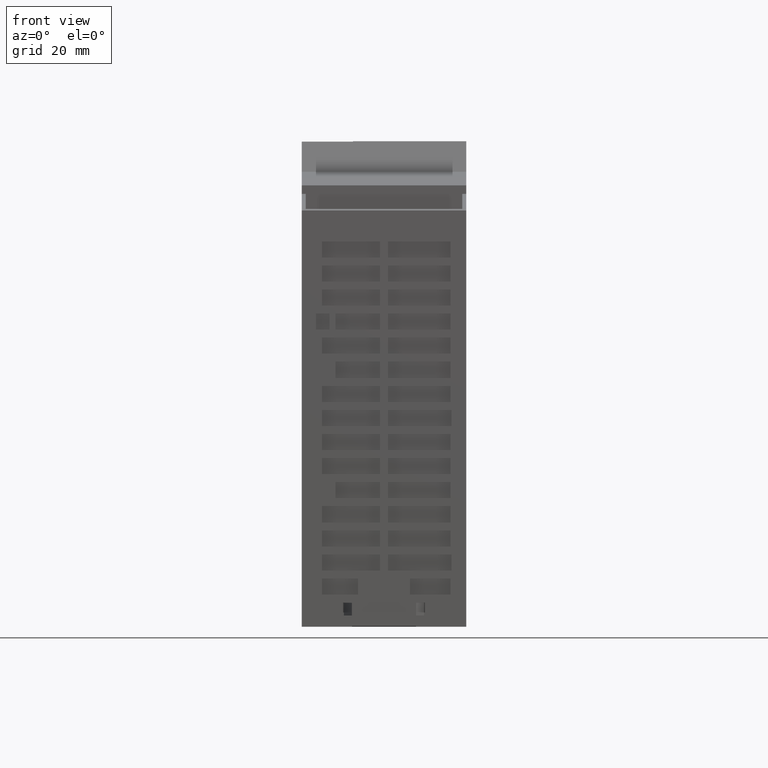
[diagram: clean part render]
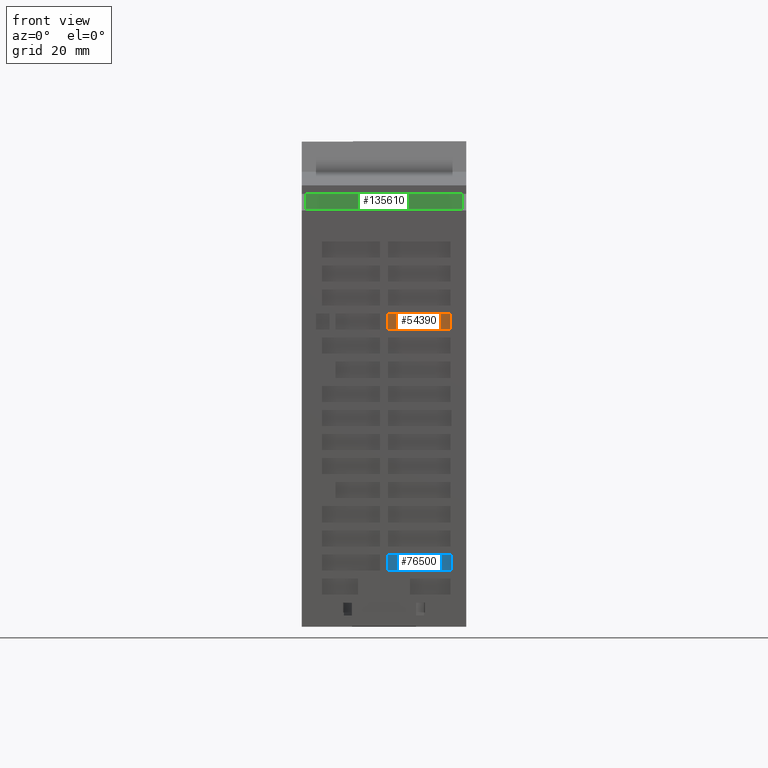
[diagram: same view with three faces highlighted in distinct colors, each labeled with its STEP entity id]
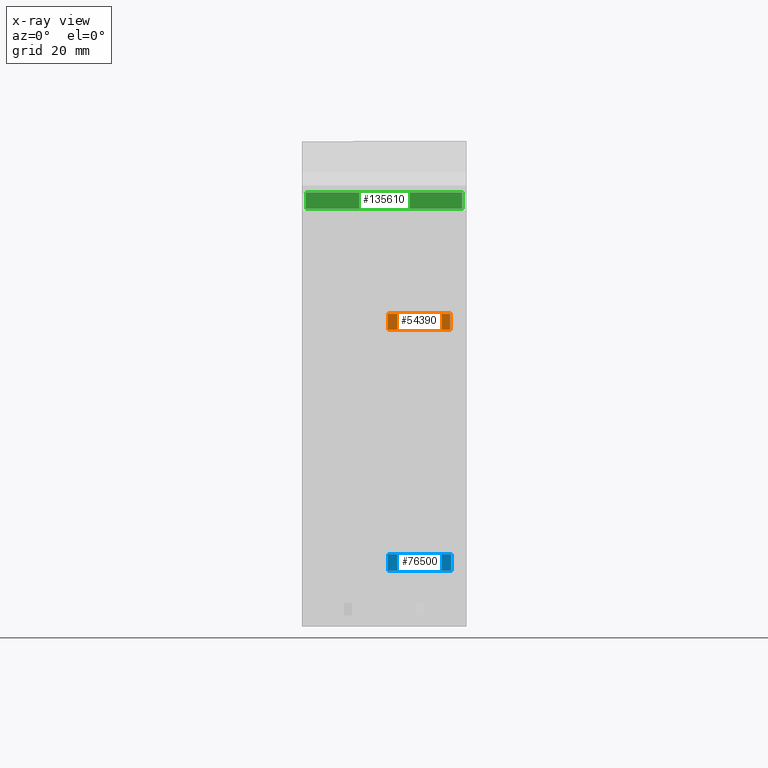
[diagram: x-ray of the same camera — body ghosted, the three highlighted faces saturated]
A machine part, front view with three faces highlighted in distinct colors.
The next image is the same camera in x-ray (body ghosted, the three faces saturated) — at least one of them is partly hidden behind the body in this view.
Their STEP definitions:

[orange] entity #54390 — the highlighted planar face has unit normal (0, -1, -0).
#40870=CARTESIAN_POINT('',(1.87984000000001,2.,-27.66484));
#40880=DIRECTION('',(-0.,-1.,-0.));
#40890=DIRECTION('',(-1.,0.,0.));
#40900=AXIS2_PLACEMENT_3D('',#40870,#40880,#40890);
#40910=PLANE('',#40900);
#46150=CARTESIAN_POINT('',(0.,2.,-42.5));
#46160=DIRECTION('',(1.,0.,0.));
#46170=VECTOR('',#46160,1.);
#46180=LINE('',#46150,#46170);
#53890=CARTESIAN_POINT('',(72.,2.,-27.));
#53900=VERTEX_POINT('',#53890);
#53930=CARTESIAN_POINT('',(0.,2.,-27.));
#53940=DIRECTION('',(-1.,0.,0.));
#53950=VECTOR('',#53940,1.);
#53960=LINE('',#53930,#53950);
#53970=CARTESIAN_POINT('',(68.,2.,-27.));
#53980=VERTEX_POINT('',#53970);
#53990=EDGE_CURVE('',#53900,#53980,#53960,.T.);
#54180=ORIENTED_EDGE('',*,*,#53990,.T.);
#54190=CARTESIAN_POINT('',(72.,2.,0.));
#54200=DIRECTION('',(0.,0.,1.));
#54210=VECTOR('',#54200,1.);
#54220=LINE('',#54190,#54210);
#54230=CARTESIAN_POINT('',(72.,2.,-42.5));
#54240=VERTEX_POINT('',#54230);
#54250=EDGE_CURVE('',#54240,#53900,#54220,.T.);
#54260=ORIENTED_EDGE('',*,*,#54250,.T.);
#54270=CARTESIAN_POINT('',(68.,2.,-42.5));
#54280=VERTEX_POINT('',#54270);
#54290=EDGE_CURVE('',#54280,#54240,#46180,.T.);
#54300=ORIENTED_EDGE('',*,*,#54290,.T.);
#54310=CARTESIAN_POINT('',(68.,2.,0.));
#54320=DIRECTION('',(0.,0.,-1.));
#54330=VECTOR('',#54320,1.);
#54340=LINE('',#54310,#54330);
#54350=EDGE_CURVE('',#53980,#54280,#54340,.T.);
#54360=ORIENTED_EDGE('',*,*,#54350,.T.);
#54370=EDGE_LOOP('',(#54360,#54300,#54260,#54180));
#54380=FACE_OUTER_BOUND('',#54370,.T.);
#54390=ADVANCED_FACE('',(#54380),#40910,.T.);

[blue] entity #76500 — the highlighted planar face has unit normal (0, -1, -0).
#40870=CARTESIAN_POINT('',(1.87984000000001,2.,-27.66484));
#40880=DIRECTION('',(-0.,-1.,-0.));
#40890=DIRECTION('',(-1.,0.,0.));
#40900=AXIS2_PLACEMENT_3D('',#40870,#40880,#40890);
#40910=PLANE('',#40900);
#68080=CARTESIAN_POINT('',(0.,2.,-27.));
#68090=DIRECTION('',(-1.,0.,0.));
#68100=VECTOR('',#68090,1.);
#68110=LINE('',#68080,#68100);
#76000=CARTESIAN_POINT('',(12.,2.,-42.75833766019));
#76010=VERTEX_POINT('',#76000);
#76040=CARTESIAN_POINT('',(12.,2.,0.));
#76050=DIRECTION('',(0.,0.,1.));
#76060=VECTOR('',#76050,1.);
#76070=LINE('',#76040,#76060);
#76080=CARTESIAN_POINT('',(12.,2.,-27.));
#76090=VERTEX_POINT('',#76080);
#76100=EDGE_CURVE('',#76010,#76090,#76070,.T.);
#76290=ORIENTED_EDGE('',*,*,#76100,.T.);
#76300=CARTESIAN_POINT('',(0.,2.,-42.75833766019));
#76310=DIRECTION('',(1.,0.,0.));
#76320=VECTOR('',#76310,1.);
#76330=LINE('',#76300,#76320);
#76340=CARTESIAN_POINT('',(7.99834045293001,2.,-42.75833766019));
#76350=VERTEX_POINT('',#76340);
#76360=EDGE_CURVE('',#76350,#76010,#76330,.T.);
#76370=ORIENTED_EDGE('',*,*,#76360,.T.);
#76380=CARTESIAN_POINT('',(7.99834045293001,2.,0.));
#76390=DIRECTION('',(0.,0.,-1.));
#76400=VECTOR('',#76390,1.);
#76410=LINE('',#76380,#76400);
#76420=CARTESIAN_POINT('',(7.99834045293001,2.,-27.));
#76430=VERTEX_POINT('',#76420);
#76440=EDGE_CURVE('',#76430,#76350,#76410,.T.);
#76450=ORIENTED_EDGE('',*,*,#76440,.T.);
#76460=EDGE_CURVE('',#76090,#76430,#68110,.T.);
#76470=ORIENTED_EDGE('',*,*,#76460,.T.);
#76480=EDGE_LOOP('',(#76470,#76450,#76370,#76290));
#76490=FACE_OUTER_BOUND('',#76480,.T.);
#76500=ADVANCED_FACE('',(#76490),#40910,.T.);

[green] entity #135610 — the highlighted planar face has unit normal (0, -1, -0).
#133000=CARTESIAN_POINT('',(98.131089605423,1.,-45.5));
#133010=VERTEX_POINT('',#133000);
#133040=CARTESIAN_POINT('',(0.,1.,-45.5));
#133050=DIRECTION('',(-1.,0.,0.));
#133060=VECTOR('',#133050,1.);
#133070=LINE('',#133040,#133060);
#133080=CARTESIAN_POINT('',(102.235029692007,0.999999999999993,-45.5));
#133090=VERTEX_POINT('',#133080);
#133100=EDGE_CURVE('',#133090,#133010,#133070,.T.);
#134130=CARTESIAN_POINT('',(98.131089605423,1.,-6.50000000000001));
#134140=VERTEX_POINT('',#134130);
#134170=CARTESIAN_POINT('',(98.131089605423,0.999999999999989,
-41.0000000000001));
#134180=DIRECTION('',(0.,0.,1.));
#134190=VECTOR('',#134180,1.);
#134200=LINE('',#134170,#134190);
#134210=EDGE_CURVE('',#133010,#134140,#134200,.T.);
#134650=CARTESIAN_POINT('',(102.235029692007,1.,-6.50000000000001));
#134660=VERTEX_POINT('',#134650);
#134690=CARTESIAN_POINT('',(0.,1.,-6.50000000000001));
#134700=DIRECTION('',(-1.,0.,0.));
#134710=VECTOR('',#134700,1.);
#134720=LINE('',#134690,#134710);
#134730=EDGE_CURVE('',#134660,#134140,#134720,.T.);
#135450=CARTESIAN_POINT('',(98.0083311032584,1.,-5.65484000000001));
#135460=DIRECTION('',(-0.,-1.,-0.));
#135470=DIRECTION('',(-1.,0.,0.));
#135480=AXIS2_PLACEMENT_3D('',#135450,#135460,#135470);
#135490=PLANE('',#135480);
#135500=ORIENTED_EDGE('',*,*,#134730,.T.);
#135510=CARTESIAN_POINT('',(102.235029692007,0.999999999999993,
-5.00000000000001));
#135520=DIRECTION('',(0.,0.,-1.));
#135530=VECTOR('',#135520,1.);
#135540=LINE('',#135510,#135530);
#135550=EDGE_CURVE('',#134660,#133090,#135540,.T.);
#135560=ORIENTED_EDGE('',*,*,#135550,.F.);
#135570=ORIENTED_EDGE('',*,*,#133100,.F.);
#135580=ORIENTED_EDGE('',*,*,#134210,.F.);
#135590=EDGE_LOOP('',(#135580,#135570,#135560,#135500));
#135600=FACE_OUTER_BOUND('',#135590,.T.);
#135610=ADVANCED_FACE('',(#135600),#135490,.T.);